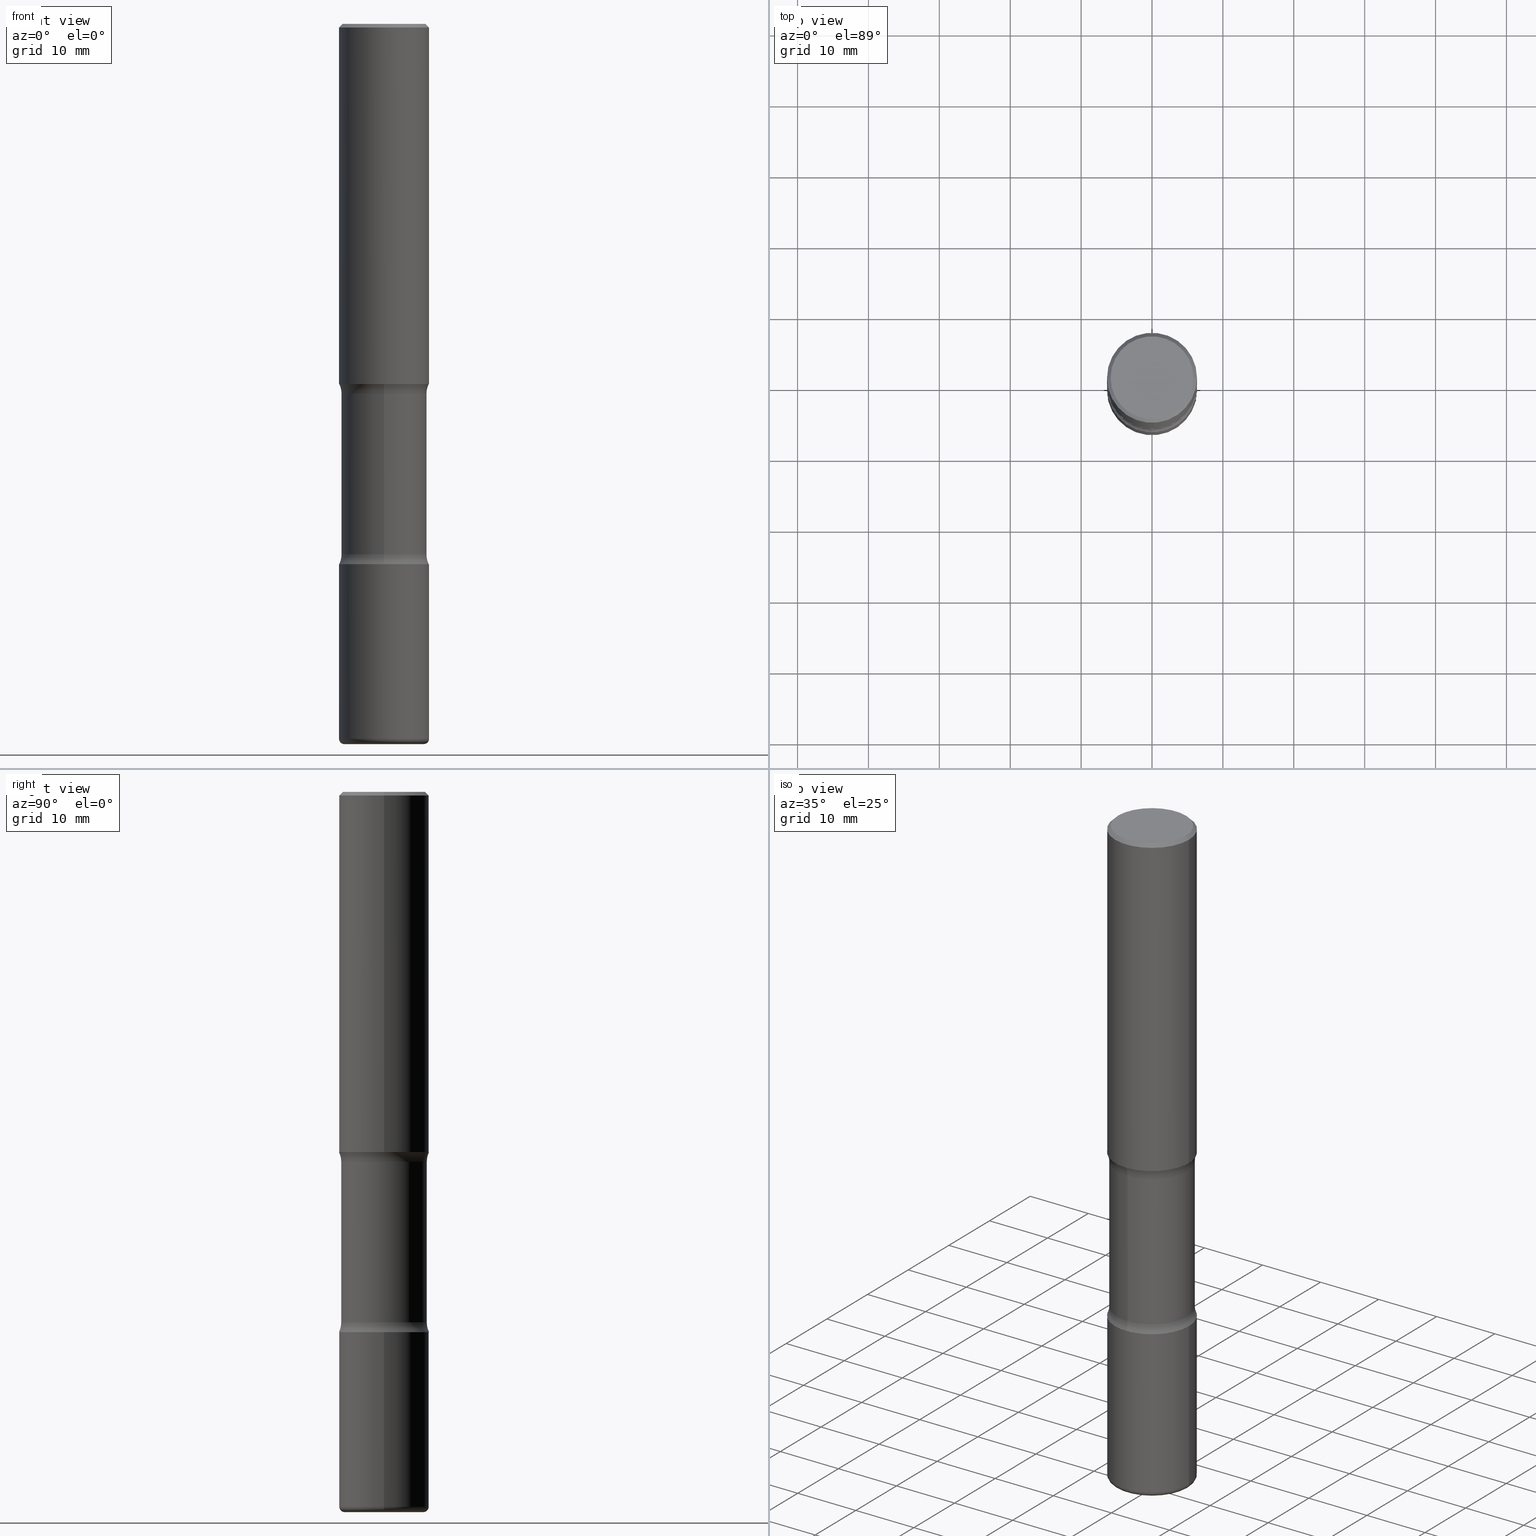
[diagram: canonical four-view strip — front | top / right | iso, engineering-drawing reading convention]
A machine part, canonical four-view strip (front | top / right | iso — engineering-drawing reading convention). The complete STEP part file that produces these views, byte-faithful:
ISO-10303-21;
HEADER;
FILE_DESCRIPTION (( 'STEP AP203' ),
    '1' );
FILE_NAME ('37880.STEP',
    '2024-03-02T01:01:30',
    ( '' ),
    ( '' ),
    'SwSTEP 2.0',
    'SolidWorks 2023',
    '' );
FILE_SCHEMA (( 'CONFIG_CONTROL_DESIGN' ));
ENDSEC;

DATA;
#1 = PERSON_AND_ORGANIZATION ( #337, #177 ) ;
#2 = CIRCLE ( 'NONE', #307, 0.2200000000000003897 ) ;
#3 = AXIS2_PLACEMENT_3D ( 'NONE', #332, #420, #509 ) ;
#4 = COORDINATED_UNIVERSAL_TIME_OFFSET ( 5, 0, .BEHIND. ) ;
#5 = ORIENTED_EDGE ( 'NONE', *, *, #423, .F. ) ;
#6 = ADVANCED_BREP_SHAPE_REPRESENTATION ( '37880', ( #57, #51, #59, #299 ), #287 ) ;
#7 = ORIENTED_EDGE ( 'NONE', *, *, #284, .T. ) ;
#8 = ORIENTED_EDGE ( 'NONE', *, *, #466, .T. ) ;
#9 = AXIS2_PLACEMENT_3D ( 'NONE', #35, #360, #548 ) ;
#10 = EDGE_CURVE ( 'NONE', #165, #477, #252, .T. ) ;
#11 = ORIENTED_EDGE ( 'NONE', *, *, #138, .F. ) ;
#12 = DIRECTION ( 'NONE',  ( 2.530378452311521502E-29, -3.369885892833230986E-15, -1.000000000000000000 ) ) ;
#13 = CARTESIAN_POINT ( 'NONE',  ( 0.2500000000000000555, -1.745740669421567269E-15, 1.219044193948984228E-29 ) ) ;
#14 = ORIENTED_EDGE ( 'NONE', *, *, #245, .T. ) ;
#15 = DIRECTION ( 'NONE',  ( -2.445468806185136597E-29, 3.491481338843145583E-15, 1.000000000000000000 ) ) ;
#16 = CARTESIAN_POINT ( 'NONE',  ( 4.806027966243888288E-29, -7.104558123696206156E-15, -2.000000000000000000 ) ) ;
#17 = DIRECTION ( 'NONE',  ( 1.000000000000000000, -6.982962677686267499E-15, 0.000000000000000000 ) ) ;
#18 = EDGE_CURVE ( 'NONE', #256, #439, #427, .T. ) ;
#19 = CC_DESIGN_DATE_AND_TIME_ASSIGNMENT ( #105, #328, ( #220 ) ) ;
#20 = CIRCLE ( 'NONE', #471, 0.02999999999999967970 ) ;
#21 = CIRCLE ( 'NONE', #85, 0.1250000000000000278 ) ;
#22 = LOCAL_TIME ( 20, 1, 30.00000000000000000, #168 ) ;
#23 = DIRECTION ( 'NONE',  ( -2.445468806185136597E-29, 3.491481338843145583E-15, 1.000000000000000000 ) ) ;
#24 = DIRECTION ( 'NONE',  ( 2.530378452311521502E-29, -3.369885892833230986E-15, -1.000000000000000000 ) ) ;
#25 = CYLINDRICAL_SURFACE ( 'NONE', #242, 0.2375000000000000999 ) ;
#26 = EDGE_CURVE ( 'NONE', #126, #95, #169, .T. ) ;
#27 = DIRECTION ( 'NONE',  ( 1.000000000000000000, -6.982962677686267499E-15, 0.000000000000000000 ) ) ;
#28 = CARTESIAN_POINT ( 'NONE',  ( -0.2499999999999999167, 1.675911042644703182E-15, -0.02000000000000006981 ) ) ;
#29 =( CONVERSION_BASED_UNIT ( 'INCH', #163 ) LENGTH_UNIT ( ) NAMED_UNIT ( #343 ) );
#30 = LINE ( 'NONE', #417, #554 ) ;
#31 = DIRECTION ( 'NONE',  ( 2.530378452311521502E-29, -3.369885892833230986E-15, -1.000000000000000000 ) ) ;
#32 = DIRECTION ( 'NONE',  ( -1.000000000000000000, 6.982962677686265922E-15, -4.876176775795935793E-29 ) ) ;
#33 = CARTESIAN_POINT ( 'NONE',  ( 9.866784870866931853E-29, -1.384432990936266734E-14, -4.000000000000000000 ) ) ;
#34 = AXIS2_PLACEMENT_3D ( 'NONE', #16, #534, #148 ) ;
#35 = CARTESIAN_POINT ( 'NONE',  ( 7.336406418555409790E-29, -1.047444401652943635E-14, -3.000000000000000444 ) ) ;
#36 = ORIENTED_EDGE ( 'NONE', *, *, #267, .F. ) ;
#37 = PERSON_AND_ORGANIZATION ( #337, #177 ) ;
#38 = CARTESIAN_POINT ( 'NONE',  ( 9.708511160554993993E-29, -1.386118091520729054E-14, -3.970000000000000639 ) ) ;
#39 = EDGE_CURVE ( 'NONE', #525, #397, #297, .T. ) ;
#40 = VERTEX_POINT ( 'NONE', #486 ) ;
#41 = ORIENTED_EDGE ( 'NONE', *, *, #10, .F. ) ;
#42 = AXIS2_PLACEMENT_3D ( 'NONE', #65, #31, #487 ) ;
#43 = EDGE_LOOP ( 'NONE', ( #401, #207 ) ) ;
#44 = AXIS2_PLACEMENT_3D ( 'NONE', #268, #282, #32 ) ;
#45 = ORIENTED_EDGE ( 'NONE', *, *, #107, .F. ) ;
#46 = ADVANCED_FACE ( 'NONE', ( #415 ), #419, .F. ) ;
#47 = ORIENTED_EDGE ( 'NONE', *, *, #271, .F. ) ;
#48 = ADVANCED_FACE ( 'NONE', ( #488 ), #316, .F. ) ;
#49 = ORIENTED_EDGE ( 'NONE', *, *, #462, .T. ) ;
#50 = CIRCLE ( 'NONE', #63, 0.1250000000000000278 ) ;
#51 = MANIFOLD_SOLID_BREP ( 'Body-Move/Copy2[2]', #553 ) ;
#52 = EDGE_CURVE ( 'NONE', #515, #126, #398, .T. ) ;
#53 = ORIENTED_EDGE ( 'NONE', *, *, #267, .T. ) ;
#54 = FACE_OUTER_BOUND ( 'NONE', #302, .T. ) ;
#55 = DIRECTION ( 'NONE',  ( -1.000000000000000000, 6.982962677686265922E-15, -4.876176775795935793E-29 ) ) ;
#56 = DIRECTION ( 'NONE',  ( 6.982962677686265922E-15, 1.000000000000000000, -3.369885892833230986E-15 ) ) ;
#57 = MANIFOLD_SOLID_BREP ( 'Body-Move/Copy2[1]', #511 ) ;
#58 = CARTESIAN_POINT ( 'NONE',  ( 1.658453635950560525E-15, 0.2374999999999897748, -2.945513763205741764 ) ) ;
#59 = MANIFOLD_SOLID_BREP ( 'Body-Move/Copy2[4]', #253 ) ;
#60 = DIRECTION ( 'NONE',  ( -2.438088387897960049E-29, 3.491481338843145188E-15, 1.000000000000000000 ) ) ;
#61 = CARTESIAN_POINT ( 'NONE',  ( -1.629368274470640415E-15, -0.2375000000000139222, -3.999999999999999556 ) ) ;
#62 = AXIS2_PLACEMENT_3D ( 'NONE', #140, #160, #308 ) ;
#63 = AXIS2_PLACEMENT_3D ( 'NONE', #197, #240, #492 ) ;
#64 = AXIS2_PLACEMENT_3D ( 'NONE', #33, #322, #117 ) ;
#65 = CARTESIAN_POINT ( 'NONE',  ( 7.198535619023675570E-29, -1.029083161580289368E-14, -2.945513763205741320 ) ) ;
#66 = CARTESIAN_POINT ( 'NONE',  ( 7.336406418555409790E-29, -1.047444401652943635E-14, -3.000000000000000444 ) ) ;
#67 = DIRECTION ( 'NONE',  ( 1.000000000000000000, -6.982962677686269077E-15, 4.883557194083113462E-29 ) ) ;
#68 = EDGE_CURVE ( 'NONE', #515, #199, #291, .T. ) ;
#69 = FACE_OUTER_BOUND ( 'NONE', #475, .T. ) ;
#70 = ORIENTED_EDGE ( 'NONE', *, *, #258, .F. ) ;
#71 = PERSON_AND_ORGANIZATION_ROLE ( 'design_supplier' ) ;
#72 = DIRECTION ( 'NONE',  ( 6.982962677686265133E-15, 1.000000000000000000, -3.450755360418014766E-15 ) ) ;
#73 = CC_DESIGN_PERSON_AND_ORGANIZATION_ASSIGNMENT ( #1, #127, ( #339 ) ) ;
#74 = DIRECTION ( 'NONE',  ( 6.982962677686265133E-15, 1.000000000000000000, -3.278217592397110735E-15 ) ) ;
#75 = CIRCLE ( 'NONE', #119, 0.02999999999999967970 ) ;
#76 = ORIENTED_EDGE ( 'NONE', *, *, #10, .T. ) ;
#77 = FACE_OUTER_BOUND ( 'NONE', #333, .T. ) ;
#78 = CARTESIAN_POINT ( 'NONE',  ( 0.000000000000000000, 0.000000000000000000, 0.000000000000000000 ) ) ;
#79 = ORIENTED_EDGE ( 'NONE', *, *, #341, .T. ) ;
#80 = VERTEX_POINT ( 'NONE', #279 ) ;
#81 = ADVANCED_FACE ( 'NONE', ( #102 ), #195, .T. ) ;
#82 = CALENDAR_DATE ( 2024, 1, 3 ) ;
#83 = APPLICATION_CONTEXT ( 'configuration controlled 3d designs of mechanical parts and assemblies' ) ;
#84 = AXIS2_PLACEMENT_3D ( 'NONE', #66, #369, #363 ) ;
#85 = AXIS2_PLACEMENT_3D ( 'NONE', #546, #541, #152 ) ;
#86 = VERTEX_POINT ( 'NONE', #28 ) ;
#87 = EDGE_CURVE ( 'NONE', #40, #165, #496, .T. ) ;
#88 = AXIS2_PLACEMENT_3D ( 'NONE', #153, #321, #123 ) ;
#89 = ORIENTED_EDGE ( 'NONE', *, *, #310, .T. ) ;
#90 = CIRCLE ( 'NONE', #130, 0.2499999999999999167 ) ;
#91 = LOCAL_TIME ( 20, 1, 30.00000000000000000, #315 ) ;
#92 = ORIENTED_EDGE ( 'NONE', *, *, #97, .F. ) ;
#93 = CC_DESIGN_PERSON_AND_ORGANIZATION_ASSIGNMENT ( #414, #229, ( #429 ) ) ;
#94 = ORIENTED_EDGE ( 'NONE', *, *, #87, .T. ) ;
#95 = VERTEX_POINT ( 'NONE', #373 ) ;
#96 = DIRECTION ( 'NONE',  ( 2.530378452311521502E-29, -3.369885892833230986E-15, -1.000000000000000000 ) ) ;
#97 = EDGE_CURVE ( 'NONE', #171, #347, #50, .T. ) ;
#98 = CARTESIAN_POINT ( 'NONE',  ( 4.890937612370273194E-29, -6.982962677686291165E-15, -2.000000000000000000 ) ) ;
#99 = DIRECTION ( 'NONE',  ( 1.000000000000000000, -6.982962677686267499E-15, 0.000000000000000000 ) ) ;
#100 = EDGE_CURVE ( 'NONE', #477, #385, #483, .T. ) ;
#101 = DIRECTION ( 'NONE',  ( -2.445468806185136597E-29, 3.491481338843145583E-15, 1.000000000000000000 ) ) ;
#102 = FACE_OUTER_BOUND ( 'NONE', #285, .T. ) ;
#103 = FACE_OUTER_BOUND ( 'NONE', #243, .T. ) ;
#104 = DIRECTION ( 'NONE',  ( 0.7071067811865467956, -7.319954787623254468E-15, -0.7071067811865482389 ) ) ;
#105 = DATE_AND_TIME ( #368, #157 ) ;
#106 = FACE_OUTER_BOUND ( 'NONE', #473, .T. ) ;
#107 = EDGE_CURVE ( 'NONE', #342, #86, #218, .T. ) ;
#108 = CARTESIAN_POINT ( 'NONE',  ( 0.2500000000000002776, -1.222018468595100619E-14, -3.000000000000000444 ) ) ;
#109 = AXIS2_PLACEMENT_3D ( 'NONE', #146, #60, #230 ) ;
#110 = CC_DESIGN_APPROVAL ( #209, ( #339 ) ) ;
#111 = CARTESIAN_POINT ( 'NONE',  ( 4.943898765775623630E-29, -7.288170524422749615E-15, -2.054486236794258680 ) ) ;
#112 = EDGE_CURVE ( 'NONE', #199, #515, #298, .T. ) ;
#113 = DIRECTION ( 'NONE',  ( 2.445468806185136597E-29, -3.491481338843145583E-15, -1.000000000000000000 ) ) ;
#114 = DIRECTION ( 'NONE',  ( 6.982962677686265133E-15, 1.000000000000000000, -2.300503573612010239E-15 ) ) ;
#115 = CARTESIAN_POINT ( 'NONE',  ( -2.486930524192130572E-15, -0.3625000000000073164, -2.054486236794257792 ) ) ;
#116 = ORIENTED_EDGE ( 'NONE', *, *, #125, .F. ) ;
#117 = DIRECTION ( 'NONE',  ( 6.982962677686265133E-15, 1.000000000000000000, -2.300503573612010239E-15 ) ) ;
#118 = ADVANCED_FACE ( 'NONE', ( #106 ), #239, .F. ) ;
#119 = AXIS2_PLACEMENT_3D ( 'NONE', #234, #445, #406 ) ;
#120 = VERTEX_POINT ( 'NONE', #539 ) ;
#121 = APPROVAL ( #523, 'UNSPECIFIED' ) ;
#122 = TOROIDAL_SURFACE ( 'NONE', #3, 0.3625000000000000999, 0.1250000000000000278 ) ;
#123 = DIRECTION ( 'NONE',  ( 1.000000000000000000, -6.982962677686270655E-15, 0.000000000000000000 ) ) ;
#124 =( NAMED_UNIT ( * ) SI_UNIT ( $, .STERADIAN. ) SOLID_ANGLE_UNIT ( ) );
#125 = EDGE_CURVE ( 'NONE', #199, #347, #149, .T. ) ;
#126 = VERTEX_POINT ( 'NONE', #543 ) ;
#127 = PERSON_AND_ORGANIZATION_ROLE ( 'creator' ) ;
#128 = CARTESIAN_POINT ( 'NONE',  ( 7.336406418555409790E-29, -1.047444401652943635E-14, -3.000000000000000444 ) ) ;
#129 = VECTOR ( 'NONE', #181, 39.37007874015748143 ) ;
#130 = AXIS2_PLACEMENT_3D ( 'NONE', #324, #137, #265 ) ;
#131 = APPROVAL_STATUS ( 'not_yet_approved' ) ;
#132 = EDGE_LOOP ( 'NONE', ( #517, #528, #179, #14 ) ) ;
#133 = EDGE_LOOP ( 'NONE', ( #381, #529, #467, #49 ) ) ;
#134 = EDGE_LOOP ( 'NONE', ( #216, #257, #294, #478 ) ) ;
#135 = DIRECTION ( 'NONE',  ( 6.982962677686265922E-15, 1.000000000000000000, -3.369885892833230592E-15 ) ) ;
#136 = ORIENTED_EDGE ( 'NONE', *, *, #396, .F. ) ;
#137 = DIRECTION ( 'NONE',  ( -2.445468806185136597E-29, 3.491481338843145583E-15, 1.000000000000000000 ) ) ;
#138 = EDGE_CURVE ( 'NONE', #385, #477, #323, .T. ) ;
#139 = CARTESIAN_POINT ( 'NONE',  ( 0.000000000000000000, 0.000000000000000000, 0.000000000000000000 ) ) ;
#140 = CARTESIAN_POINT ( 'NONE',  ( 0.000000000000000000, 0.000000000000000000, 0.000000000000000000 ) ) ;
#141 = DIRECTION ( 'NONE',  ( -6.982962677686265922E-15, -1.000000000000000000, 3.369885892833230592E-15 ) ) ;
#142 = CARTESIAN_POINT ( 'NONE',  ( 4.890937612370289799E-31, -6.982962677686315028E-17, -0.02000000000000006981 ) ) ;
#143 = AXIS2_PLACEMENT_3D ( 'NONE', #370, #356, #459 ) ;
#144 = CARTESIAN_POINT ( 'NONE',  ( 0.000000000000000000, 0.000000000000000000, 0.000000000000000000 ) ) ;
#145 = APPROVAL_ROLE ( '' ) ;
#146 = CARTESIAN_POINT ( 'NONE',  ( 4.890937612370273194E-29, -6.982962677686291165E-15, -2.000000000000000000 ) ) ;
#147 = CARTESIAN_POINT ( 'NONE',  ( 7.336406418555409790E-29, -1.047444401652943635E-14, -3.000000000000000444 ) ) ;
#148 = DIRECTION ( 'NONE',  ( 6.982962677686265133E-15, 1.000000000000000000, -3.278217592397110735E-15 ) ) ;
#149 = LINE ( 'NONE', #272, #513 ) ;
#150 = CARTESIAN_POINT ( 'NONE',  ( -0.2499999999999999167, 1.675911042644703182E-15, -0.02000000000000006981 ) ) ;
#151 = DIRECTION ( 'NONE',  ( 2.530378452311521502E-29, -3.369885892833230986E-15, -1.000000000000000000 ) ) ;
#152 = DIRECTION ( 'NONE',  ( 6.860497997771532351E-15, 1.000000000000000000, 0.000000000000000000 ) ) ;
#153 = CARTESIAN_POINT ( 'NONE',  ( 7.336406418555409790E-29, -1.047444401652943635E-14, -3.000000000000000444 ) ) ;
#154 = CYLINDRICAL_SURFACE ( 'NONE', #64, 0.2375000000000000999 ) ;
#155 = CARTESIAN_POINT ( 'NONE',  ( -0.2200000000000003897, -1.224377770625369951E-14, -4.000000000000000000 ) ) ;
#156 = VECTOR ( 'NONE', #158, 39.37007874015748143 ) ;
#157 = LOCAL_TIME ( 20, 1, 30.00000000000000000, #549 ) ;
#158 = DIRECTION ( 'NONE',  ( -2.445468806185136877E-29, 3.491481338843145188E-15, 1.000000000000000000 ) ) ;
#159 = ORIENTED_EDGE ( 'NONE', *, *, #204, .T. ) ;
#160 = DIRECTION ( 'NONE',  ( -2.445468806185136597E-29, 3.491481338843145583E-15, 1.000000000000000000 ) ) ;
#161 = DIRECTION ( 'NONE',  ( -2.445468806185136597E-29, 3.491481338843145583E-15, 1.000000000000000000 ) ) ;
#162 = EDGE_LOOP ( 'NONE', ( #394, #8 ) ) ;
#163 = LENGTH_MEASURE_WITH_UNIT ( LENGTH_MEASURE( 0.02539999999999999897 ), #273 );
#164 = TOROIDAL_SURFACE ( 'NONE', #260, 0.3625000000000000999, 0.1250000000000000000 ) ;
#165 = VERTEX_POINT ( 'NONE', #289 ) ;
#166 = ORIENTED_EDGE ( 'NONE', *, *, #466, .F. ) ;
#167 = PERSON_AND_ORGANIZATION_ROLE ( 'design_owner' ) ;
#168 = COORDINATED_UNIVERSAL_TIME_OFFSET ( 5, 0, .BEHIND. ) ;
#169 = CIRCLE ( 'NONE', #482, 0.2500000000000003886 ) ;
#170 = APPROVAL_PERSON_ORGANIZATION ( #431, #209, #393 ) ;
#171 = VERTEX_POINT ( 'NONE', #351 ) ;
#172 = EDGE_CURVE ( 'NONE', #165, #40, #254, .T. ) ;
#173 = ORIENTED_EDGE ( 'NONE', *, *, #300, .T. ) ;
#174 = EDGE_CURVE ( 'NONE', #120, #80, #21, .T. ) ;
#175 = AXIS2_PLACEMENT_3D ( 'NONE', #436, #178, #135 ) ;
#176 = ORIENTED_EDGE ( 'NONE', *, *, #100, .T. ) ;
#177 = ORGANIZATION ( 'UNSPECIFIED', 'UNSPECIFIED', '' ) ;
#178 = DIRECTION ( 'NONE',  ( 2.530378452311521502E-29, -3.369885892833230592E-15, -1.000000000000000000 ) ) ;
#179 = ORIENTED_EDGE ( 'NONE', *, *, #433, .T. ) ;
#180 = FACE_OUTER_BOUND ( 'NONE', #278, .T. ) ;
#181 = DIRECTION ( 'NONE',  ( -2.445468806185136877E-29, 3.491481338843145188E-15, 1.000000000000000000 ) ) ;
#182 = ORIENTED_EDGE ( 'NONE', *, *, #396, .T. ) ;
#183 = CARTESIAN_POINT ( 'NONE',  ( 4.976491023364875751E-29, -7.241496556518841686E-15, -2.054486236794258680 ) ) ;
#184 = DIRECTION ( 'NONE',  ( -2.445468806185136597E-29, 3.491481338843145583E-15, 1.000000000000000000 ) ) ;
#185 = CARTESIAN_POINT ( 'NONE',  ( 4.943898765775623630E-29, -7.288170524422749615E-15, -2.054486236794258680 ) ) ;
#186 = CIRCLE ( 'NONE', #335, 0.2200000000000003897 ) ;
#187 = CARTESIAN_POINT ( 'NONE',  ( 0.2200000000000003897, -1.550217714446356385E-14, -4.000000000000000000 ) ) ;
#188 = COORDINATED_UNIVERSAL_TIME_OFFSET ( 5, 0, .BEHIND. ) ;
#189 = CARTESIAN_POINT ( 'NONE',  ( 4.806027966243888288E-29, -7.104558123696206156E-15, -2.000000000000000000 ) ) ;
#190 = CC_DESIGN_DATE_AND_TIME_ASSIGNMENT ( #293, #390, ( #339 ) ) ;
#191 = LINE ( 'NONE', #13, #129 ) ;
#192 = CARTESIAN_POINT ( 'NONE',  ( 4.890937612370273194E-29, -6.982962677686291165E-15, -2.000000000000000000 ) ) ;
#193 = DIRECTION ( 'NONE',  ( 6.982962677686265922E-15, 1.000000000000000000, -4.370956789862816416E-15 ) ) ;
#194 = DIRECTION ( 'NONE',  ( -2.445468806185136597E-29, 3.491481338843145583E-15, 1.000000000000000000 ) ) ;
#195 = PLANE ( 'NONE',  #44 ) ;
#196 = CONICAL_SURFACE ( 'NONE', #476, 0.2499999999999999167, 0.7853981633974472798 ) ;
#197 = CARTESIAN_POINT ( 'NONE',  ( 2.531323970661343863E-15, 0.3624999999999897748, -2.945513763205742652 ) ) ;
#198 = DIRECTION ( 'NONE',  ( -1.000000000000000000, 6.982962677686267499E-15, 0.000000000000000000 ) ) ;
#199 = VERTEX_POINT ( 'NONE', #538 ) ;
#200 = PERSON_AND_ORGANIZATION ( #337, #177 ) ;
#201 = DIRECTION ( 'NONE',  ( 2.445468806185136597E-29, -3.491481338843145583E-15, -1.000000000000000000 ) ) ;
#202 = ORIENTED_EDGE ( 'NONE', *, *, #87, .F. ) ;
#203 = APPLICATION_PROTOCOL_DEFINITION ( 'international standard', 'config_control_design', 1994, #83 ) ;
#204 = EDGE_CURVE ( 'NONE', #397, #342, #319, .T. ) ;
#205 = CIRCLE ( 'NONE', #428, 0.2375000000000000722 ) ;
#206 = CARTESIAN_POINT ( 'NONE',  ( 0.000000000000000000, 0.000000000000000000, 0.000000000000000000 ) ) ;
#207 = ORIENTED_EDGE ( 'NONE', *, *, #371, .T. ) ;
#208 = ADVANCED_FACE ( 'NONE', ( #367 ), #437, .F. ) ;
#209 = APPROVAL ( #131, 'UNSPECIFIED' ) ;
#210 = APPLICATION_PROTOCOL_DEFINITION ( 'international standard', 'config_control_design', 1994, #432 ) ;
#211 = FACE_OUTER_BOUND ( 'NONE', #303, .T. ) ;
#212 = FACE_OUTER_BOUND ( 'NONE', #468, .T. ) ;
#213 = APPROVAL_DATE_TIME ( #516, #209 ) ;
#214 = AXIS2_PLACEMENT_3D ( 'NONE', #139, #23, #306 ) ;
#215 = ORIENTED_EDGE ( 'NONE', *, *, #300, .F. ) ;
#216 = ORIENTED_EDGE ( 'NONE', *, *, #469, .F. ) ;
#217 = ORIENTED_EDGE ( 'NONE', *, *, #172, .F. ) ;
#218 = CIRCLE ( 'NONE', #409, 0.2499999999999999167 ) ;
#219 = ORIENTED_EDGE ( 'NONE', *, *, #430, .F. ) ;
#220 = SECURITY_CLASSIFICATION ( '', '', #454 ) ;
#221 = UNCERTAINTY_MEASURE_WITH_UNIT (LENGTH_MEASURE( 1.000000000000000082E-05 ), #29, 'distance_accuracy_value', 'NONE');
#222 = CARTESIAN_POINT ( 'NONE',  ( 0.2500000000000003331, -1.745740669421569044E-15, 1.219044193948985630E-29 ) ) ;
#223 = ORIENTED_EDGE ( 'NONE', *, *, #430, .T. ) ;
#224 = CARTESIAN_POINT ( 'NONE',  ( 7.336406418555409790E-29, -1.047444401652943635E-14, -3.000000000000000444 ) ) ;
#225 = CYLINDRICAL_SURFACE ( 'NONE', #292, 0.2500000000000003331 ) ;
#226 = DIRECTION ( 'NONE',  ( 2.438088387897960049E-29, -3.491481338843145188E-15, -1.000000000000000000 ) ) ;
#227 = CARTESIAN_POINT ( 'NONE',  ( 9.708511160554993993E-29, -1.386118091520729054E-14, -3.970000000000000639 ) ) ;
#228 = DIRECTION ( 'NONE',  ( 6.982962677686265922E-15, 1.000000000000000000, -3.369885892833230986E-15 ) ) ;
#229 = PERSON_AND_ORGANIZATION_ROLE ( 'creator' ) ;
#230 = DIRECTION ( 'NONE',  ( 1.000000000000000000, -6.982962677686265922E-15, 4.876176775795935793E-29 ) ) ;
#231 = CIRCLE ( 'NONE', #34, 0.2500000000000003886 ) ;
#232 = CARTESIAN_POINT ( 'NONE',  ( -0.2500000000000002776, -1.039145562646811219E-14, -3.000000000000000444 ) ) ;
#233 = CC_DESIGN_PERSON_AND_ORGANIZATION_ASSIGNMENT ( #37, #378, ( #220 ) ) ;
#234 = CARTESIAN_POINT ( 'NONE',  ( -0.2200000000000003897, -1.229798689653506716E-14, -3.970000000000000639 ) ) ;
#235 = CALENDAR_DATE ( 2024, 1, 3 ) ;
#236 = DIRECTION ( 'NONE',  ( -2.445468806185136877E-29, 3.491481338843145188E-15, 1.000000000000000000 ) ) ;
#237 = DIRECTION ( 'NONE',  ( 6.982962677686265922E-15, 1.000000000000000000, -3.369885892833230986E-15 ) ) ;
#238 = CC_DESIGN_PERSON_AND_ORGANIZATION_ASSIGNMENT ( #555, #167, ( #557 ) ) ;
#239 = PLANE ( 'NONE',  #109 ) ;
#240 = DIRECTION ( 'NONE',  ( -1.000000000000000000, 6.982962677686265922E-15, -4.883557194083112340E-29 ) ) ;
#241 = CIRCLE ( 'NONE', #421, 0.2500000000000002776 ) ;
#242 = AXIS2_PLACEMENT_3D ( 'NONE', #480, #96, #489 ) ;
#243 = EDGE_LOOP ( 'NONE', ( #166, #510, #7, #92 ) ) ;
#244 = VERTEX_POINT ( 'NONE', #187 ) ;
#245 = EDGE_CURVE ( 'NONE', #95, #126, #231, .T. ) ;
#246 = ORIENTED_EDGE ( 'NONE', *, *, #26, .F. ) ;
#247 = APPROVAL_ROLE ( '' ) ;
#248 = AXIS2_PLACEMENT_3D ( 'NONE', #111, #407, #535 ) ;
#249 = CIRCLE ( 'NONE', #375, 0.2500000000000002776 ) ;
#250 = ADVANCED_FACE ( 'NONE', ( #485 ), #277, .T. ) ;
#251 = DIRECTION ( 'NONE',  ( 0.000000000000000000, 0.000000000000000000, 1.000000000000000000 ) ) ;
#252 = LINE ( 'NONE', #312, #533 ) ;
#253 = CLOSED_SHELL ( 'NONE', ( #537, #507, #208, #389, #379, #518, #521, #481 ) ) ;
#254 = CIRCLE ( 'NONE', #526, 0.2500000000000003886 ) ;
#255 = TOROIDAL_SURFACE ( 'NONE', #344, 0.2200000000000003897, 0.02999999999999969705 ) ;
#256 = VERTEX_POINT ( 'NONE', #314 ) ;
#257 = ORIENTED_EDGE ( 'NONE', *, *, #68, .T. ) ;
#258 = EDGE_CURVE ( 'NONE', #395, #244, #186, .T. ) ;
#259 = ORIENTED_EDGE ( 'NONE', *, *, #462, .F. ) ;
#260 = AXIS2_PLACEMENT_3D ( 'NONE', #183, #151, #56 ) ;
#261 = ORIENTED_EDGE ( 'NONE', *, *, #26, .T. ) ;
#262 = CARTESIAN_POINT ( 'NONE',  ( 7.203162026108633562E-29, -1.028420633753849345E-14, -2.945513763205741320 ) ) ;
#263 = DIRECTION ( 'NONE',  ( 1.000000000000000000, -6.982962677686265922E-15, 0.000000000000000000 ) ) ;
#264 = CARTESIAN_POINT ( 'NONE',  ( 4.890937612370289799E-31, -6.982962677686315028E-17, -0.02000000000000006981 ) ) ;
#265 = DIRECTION ( 'NONE',  ( 1.000000000000000000, -6.982962677686267499E-15, 0.000000000000000000 ) ) ;
#266 = CYLINDRICAL_SURFACE ( 'NONE', #350, 0.2500000000000000555 ) ;
#267 = EDGE_CURVE ( 'NONE', #40, #385, #410, .T. ) ;
#268 = CARTESIAN_POINT ( 'NONE',  ( 9.781875224740546387E-29, -1.396592535537258233E-14, -4.000000000000000000 ) ) ;
#269 = DIRECTION ( 'NONE',  ( -2.445468806185136877E-29, 3.491481338843145188E-15, 1.000000000000000000 ) ) ;
#270 = DIRECTION ( 'NONE',  ( 1.000000000000000000, -6.982962677686267499E-15, 0.000000000000000000 ) ) ;
#271 = EDGE_CURVE ( 'NONE', #244, #40, #20, .T. ) ;
#272 = CARTESIAN_POINT ( 'NONE',  ( 1.658453635950587543E-15, 0.2374999999999862776, -4.000000000000000888 ) ) ;
#273 =( LENGTH_UNIT ( ) NAMED_UNIT ( * ) SI_UNIT ( $, .METRE. ) );
#274 = VECTOR ( 'NONE', #104, 39.37007874015748143 ) ;
#275 = CARTESIAN_POINT ( 'NONE',  ( -0.2500000000000001665, -1.750039312831323809E-15, -2.000000000000000000 ) ) ;
#276 = AXIS2_PLACEMENT_3D ( 'NONE', #262, #494, #237 ) ;
#277 = CYLINDRICAL_SURFACE ( 'NONE', #359, 0.2500000000000000555 ) ;
#278 = EDGE_LOOP ( 'NONE', ( #223, #89, #202, #47 ) ) ;
#279 = CARTESIAN_POINT ( 'NONE',  ( -1.672246386956739071E-15, -0.2375000000000103417, -2.945513763205740876 ) ) ;
#280 = FACE_OUTER_BOUND ( 'NONE', #132, .T. ) ;
#281 = DIRECTION ( 'NONE',  ( -2.445468806185136597E-29, 3.491481338843145583E-15, 1.000000000000000000 ) ) ;
#282 = DIRECTION ( 'NONE',  ( 2.438088387897960049E-29, -3.491481338843145188E-15, -1.000000000000000000 ) ) ;
#283 = CARTESIAN_POINT ( 'NONE',  ( -0.2299999999999998990, 1.640996229256271928E-15, -1.135408596578605420E-29 ) ) ;
#284 = EDGE_CURVE ( 'NONE', #80, #347, #545, .T. ) ;
#285 = EDGE_LOOP ( 'NONE', ( #219, #70 ) ) ;
#286 = AXIS2_PLACEMENT_3D ( 'NONE', #227, #408, #67 ) ;
#287 =( GEOMETRIC_REPRESENTATION_CONTEXT ( 3 ) GLOBAL_UNCERTAINTY_ASSIGNED_CONTEXT ( ( #221 ) ) GLOBAL_UNIT_ASSIGNED_CONTEXT ( ( #29, #512, #124 ) ) REPRESENTATION_CONTEXT ( 'NONE', 'WORKASPACE' ) );
#288 = ORIENTED_EDGE ( 'NONE', *, *, #245, .F. ) ;
#289 = CARTESIAN_POINT ( 'NONE',  ( -0.2500000000000002220, -1.208482407580703850E-14, -3.970000000000000639 ) ) ;
#290 = ORIENTED_EDGE ( 'NONE', *, *, #349, .F. ) ;
#291 = CIRCLE ( 'NONE', #248, 0.2375000000000001277 ) ;
#292 = AXIS2_PLACEMENT_3D ( 'NONE', #206, #348, #441 ) ;
#293 = DATE_AND_TIME ( #82, #22 ) ;
#294 = ORIENTED_EDGE ( 'NONE', *, *, #125, .T. ) ;
#295 = DIRECTION ( 'NONE',  ( -2.445468806185136597E-29, 3.491481338843145583E-15, 1.000000000000000000 ) ) ;
#296 = ORIENTED_EDGE ( 'NONE', *, *, #271, .T. ) ;
#297 = CIRCLE ( 'NONE', #62, 0.2299999999999998990 ) ;
#298 = CIRCLE ( 'NONE', #383, 0.2375000000000001277 ) ;
#299 = AXIS2_PLACEMENT_3D ( 'NONE', #382, #251, #340 ) ;
#300 = EDGE_CURVE ( 'NONE', #439, #256, #374, .T. ) ;
#301 = EDGE_LOOP ( 'NONE', ( #552, #558, #261, #531 ) ) ;
#302 = EDGE_LOOP ( 'NONE', ( #94, #76, #11, #36 ) ) ;
#303 = EDGE_LOOP ( 'NONE', ( #355, #5, #425, #79 ) ) ;
#304 = ADVANCED_FACE ( 'NONE', ( #69 ), #266, .T. ) ;
#305 = DIRECTION ( 'NONE',  ( 6.982962677686265922E-15, 1.000000000000000000, -4.370956789862816416E-15 ) ) ;
#306 = DIRECTION ( 'NONE',  ( 1.000000000000000000, -6.982962677686266711E-15, 4.876176775795935793E-29 ) ) ;
#307 = AXIS2_PLACEMENT_3D ( 'NONE', #532, #15, #405 ) ;
#308 = DIRECTION ( 'NONE',  ( 1.000000000000000000, -6.982962677686267499E-15, 4.876176775795936353E-29 ) ) ;
#309 = CARTESIAN_POINT ( 'NONE',  ( 0.2299999999999998990, -1.681434332853598617E-15, 1.149527484987432660E-29 ) ) ;
#310 = EDGE_CURVE ( 'NONE', #395, #165, #75, .T. ) ;
#311 = DIRECTION ( 'NONE',  ( -6.982962677686266711E-15, -1.000000000000000000, 3.491481338843145583E-15 ) ) ;
#312 = CARTESIAN_POINT ( 'NONE',  ( -0.2500000000000003331, 1.776356839400252831E-15, -1.229733772563727987E-29 ) ) ;
#313 = DIRECTION ( 'NONE',  ( 2.530378452311521502E-29, -3.369885892833230986E-15, -1.000000000000000000 ) ) ;
#314 = CARTESIAN_POINT ( 'NONE',  ( 0.2500000000000001665, -8.728703347107858632E-15, -2.000000000000000000 ) ) ;
#315 = COORDINATED_UNIVERSAL_TIME_OFFSET ( 5, 0, .BEHIND. ) ;
#316 = PLANE ( 'NONE',  #84 ) ;
#317 = FACE_OUTER_BOUND ( 'NONE', #377, .T. ) ;
#318 = DIRECTION ( 'NONE',  ( 1.000000000000000000, -6.982962677686267499E-15, 4.876176775795936353E-29 ) ) ;
#319 = LINE ( 'NONE', #358, #274 ) ;
#320 = AXIS2_PLACEMENT_3D ( 'NONE', #500, #226, #55 ) ;
#321 = DIRECTION ( 'NONE',  ( -2.445468806185136597E-29, 3.491481338843145583E-15, 1.000000000000000000 ) ) ;
#322 = DIRECTION ( 'NONE',  ( 2.530378452311521502E-29, -3.369885892833230986E-15, -1.000000000000000000 ) ) ;
#323 = CIRCLE ( 'NONE', #88, 0.2500000000000002776 ) ;
#324 = CARTESIAN_POINT ( 'NONE',  ( 4.890937612370289799E-31, -6.982962677686315028E-17, -0.02000000000000006981 ) ) ;
#325 = AXIS2_PLACEMENT_3D ( 'NONE', #506, #201, #198 ) ;
#326 = CARTESIAN_POINT ( 'NONE',  ( 0.2200000000000003897, -1.539743270429827048E-14, -3.970000000000000639 ) ) ;
#327 = ORIENTED_EDGE ( 'NONE', *, *, #100, .F. ) ;
#328 = DATE_TIME_ROLE ( 'classification_date' ) ;
#329 = DIRECTION ( 'NONE',  ( 6.860497997771529985E-15, 1.000000000000000000, 0.000000000000000000 ) ) ;
#330 = ORIENTED_EDGE ( 'NONE', *, *, #258, .T. ) ;
#331 = PERSON_AND_ORGANIZATION ( #337, #177 ) ;
#332 = CARTESIAN_POINT ( 'NONE',  ( 7.203162026108633562E-29, -1.028420633753849345E-14, -2.945513763205741320 ) ) ;
#333 = EDGE_LOOP ( 'NONE', ( #463, #330, #296, #217 ) ) ;
#334 = AXIS2_PLACEMENT_3D ( 'NONE', #411, #505, #99 ) ;
#335 = AXIS2_PLACEMENT_3D ( 'NONE', #418, #281, #270 ) ;
#336 = AXIS2_PLACEMENT_3D ( 'NONE', #128, #434, #141 ) ;
#337 = PERSON ( 'UNSPECIFIED', 'UNSPECIFIED', 'UNSPECIFIED', ('UNSPECIFIED'), ('UNSPECIFIED'), ('UNSPECIFIED') ) ;
#338 = ORIENTED_EDGE ( 'NONE', *, *, #341, .F. ) ;
#339 = PRODUCT_DEFINITION ( 'UNKNOWN', '', #429, #502 ) ;
#340 = DIRECTION ( 'NONE',  ( 1.000000000000000000, 0.000000000000000000, 0.000000000000000000 ) ) ;
#341 = EDGE_CURVE ( 'NONE', #347, #80, #205, .T. ) ;
#342 = VERTEX_POINT ( 'NONE', #413 ) ;
#343 = DIMENSIONAL_EXPONENTS ( 1.000000000000000000, 0.000000000000000000, 0.000000000000000000, 0.000000000000000000, 0.000000000000000000, 0.000000000000000000, 0.000000000000000000 ) ;
#344 = AXIS2_PLACEMENT_3D ( 'NONE', #38, #161, #501 ) ;
#345 = PERSON_AND_ORGANIZATION ( #337, #177 ) ;
#346 = ORIENTED_EDGE ( 'NONE', *, *, #172, .T. ) ;
#347 = VERTEX_POINT ( 'NONE', #58 ) ;
#348 = DIRECTION ( 'NONE',  ( -2.445468806185136597E-29, 3.491481338843145583E-15, 1.000000000000000000 ) ) ;
#349 = EDGE_CURVE ( 'NONE', #256, #342, #191, .T. ) ;
#350 = AXIS2_PLACEMENT_3D ( 'NONE', #447, #503, #460 ) ;
#351 = CARTESIAN_POINT ( 'NONE',  ( 1.745740669421641422E-15, 0.2499999999999897582, -3.000000000000000888 ) ) ;
#352 = ORIENTED_EDGE ( 'NONE', *, *, #551, .F. ) ;
#353 = ORIENTED_EDGE ( 'NONE', *, *, #138, .T. ) ;
#354 = FACE_OUTER_BOUND ( 'NONE', #550, .T. ) ;
#355 = ORIENTED_EDGE ( 'NONE', *, *, #174, .F. ) ;
#356 = DIRECTION ( 'NONE',  ( -1.000000000000000000, 6.982962677686265922E-15, -4.883557194083112340E-29 ) ) ;
#357 = ADVANCED_FACE ( 'NONE', ( #354 ), #530, .T. ) ;
#358 = CARTESIAN_POINT ( 'NONE',  ( 0.2499999999999999167, -1.784954126219745400E-15, -0.02000000000000006981 ) ) ;
#359 = AXIS2_PLACEMENT_3D ( 'NONE', #144, #194, #457 ) ;
#360 = DIRECTION ( 'NONE',  ( -2.445468806185136597E-29, 3.491481338843145583E-15, 1.000000000000000000 ) ) ;
#361 = CONICAL_SURFACE ( 'NONE', #325, 0.2499999999999999167, 0.7853981633974472798 ) ;
#362 = DATE_AND_TIME ( #235, #472 ) ;
#363 = DIRECTION ( 'NONE',  ( -1.000000000000000000, 6.982962677686265922E-15, -4.876176775795935793E-29 ) ) ;
#364 = LINE ( 'NONE', #150, #527 ) ;
#365 = LINE ( 'NONE', #61, #384 ) ;
#366 = ADVANCED_FACE ( 'NONE', ( #54 ), #225, .T. ) ;
#367 = FACE_OUTER_BOUND ( 'NONE', #301, .T. ) ;
#368 = CALENDAR_DATE ( 2024, 1, 3 ) ;
#369 = DIRECTION ( 'NONE',  ( 2.438088387897960049E-29, -3.491481338843145188E-15, -1.000000000000000000 ) ) ;
#370 = CARTESIAN_POINT ( 'NONE',  ( 2.531323970661321775E-15, 0.3624999999999928280, -2.054486236794260012 ) ) ;
#371 = EDGE_CURVE ( 'NONE', #397, #525, #442, .T. ) ;
#372 = CARTESIAN_POINT ( 'NONE',  ( 7.198535619023675570E-29, -1.029083161580289368E-14, -2.945513763205741320 ) ) ;
#373 = CARTESIAN_POINT ( 'NONE',  ( 1.745740669421617165E-15, 0.2499999999999933109, -2.000000000000000888 ) ) ;
#374 = CIRCLE ( 'NONE', #519, 0.2500000000000001665 ) ;
#375 = AXIS2_PLACEMENT_3D ( 'NONE', #147, #313, #305 ) ;
#376 = DIRECTION ( 'NONE',  ( -2.445468806185136597E-29, 3.491481338843145583E-15, 1.000000000000000000 ) ) ;
#377 = EDGE_LOOP ( 'NONE', ( #404, #159, #479, #352 ) ) ;
#378 = PERSON_AND_ORGANIZATION_ROLE ( 'classification_officer' ) ;
#379 = ADVANCED_FACE ( 'NONE', ( #212 ), #391, .F. ) ;
#380 = APPROVAL ( #542, 'UNSPECIFIED' ) ;
#381 = ORIENTED_EDGE ( 'NONE', *, *, #204, .F. ) ;
#382 = CARTESIAN_POINT ( 'NONE',  ( 0.000000000000000000, 0.000000000000000000, 0.000000000000000000 ) ) ;
#383 = AXIS2_PLACEMENT_3D ( 'NONE', #185, #458, #72 ) ;
#384 = VECTOR ( 'NONE', #451, 39.37007874015748143 ) ;
#385 = VERTEX_POINT ( 'NONE', #108 ) ;
#386 = MECHANICAL_CONTEXT ( 'NONE', #83, 'mechanical' ) ;
#387 = ADVANCED_FACE ( 'NONE', ( #402 ), #196, .T. ) ;
#388 = CALENDAR_DATE ( 2024, 1, 3 ) ;
#389 = ADVANCED_FACE ( 'NONE', ( #280 ), #164, .F. ) ;
#390 = DATE_TIME_ROLE ( 'creation_date' ) ;
#391 = PLANE ( 'NONE',  #175 ) ;
#392 = CIRCLE ( 'NONE', #143, 0.1250000000000000000 ) ;
#393 = APPROVAL_ROLE ( '' ) ;
#394 = ORIENTED_EDGE ( 'NONE', *, *, #423, .T. ) ;
#395 = VERTEX_POINT ( 'NONE', #155 ) ;
#396 = EDGE_CURVE ( 'NONE', #439, #86, #30, .T. ) ;
#397 = VERTEX_POINT ( 'NONE', #309 ) ;
#398 = CIRCLE ( 'NONE', #544, 0.1250000000000000000 ) ;
#399 = AXIS2_PLACEMENT_3D ( 'NONE', #497, #403, #228 ) ;
#400 = APPROVAL_PERSON_ORGANIZATION ( #345, #121, #247 ) ;
#401 = ORIENTED_EDGE ( 'NONE', *, *, #39, .T. ) ;
#402 = FACE_OUTER_BOUND ( 'NONE', #133, .T. ) ;
#403 = DIRECTION ( 'NONE',  ( 2.530378452311521502E-29, -3.369885892833230986E-15, -1.000000000000000000 ) ) ;
#404 = ORIENTED_EDGE ( 'NONE', *, *, #371, .F. ) ;
#405 = DIRECTION ( 'NONE',  ( 1.000000000000000000, -6.982962677686267499E-15, 0.000000000000000000 ) ) ;
#406 = DIRECTION ( 'NONE',  ( -1.000000000000000000, 7.105427357601001859E-15, 0.000000000000000000 ) ) ;
#407 = DIRECTION ( 'NONE',  ( 2.530378452311521502E-29, -3.369885892833230986E-15, -1.000000000000000000 ) ) ;
#408 = DIRECTION ( 'NONE',  ( -2.445468806185136597E-29, 3.491481338843145583E-15, 1.000000000000000000 ) ) ;
#409 = AXIS2_PLACEMENT_3D ( 'NONE', #264, #446, #17 ) ;
#410 = LINE ( 'NONE', #222, #156 ) ;
#411 = CARTESIAN_POINT ( 'NONE',  ( 9.708511160554993993E-29, -1.386118091520729054E-14, -3.970000000000000639 ) ) ;
#412 = FACE_OUTER_BOUND ( 'NONE', #134, .T. ) ;
#413 = CARTESIAN_POINT ( 'NONE',  ( 0.2499999999999999167, -1.784954126219745400E-15, -0.02000000000000006981 ) ) ;
#414 = PERSON_AND_ORGANIZATION ( #337, #177 ) ;
#415 = FACE_OUTER_BOUND ( 'NONE', #43, .T. ) ;
#416 = DIRECTION ( 'NONE',  ( -0.7071067811865467956, 2.468850131082249172E-15, -0.7071067811865482389 ) ) ;
#417 = CARTESIAN_POINT ( 'NONE',  ( -0.2500000000000000555, 1.776356839400250859E-15, -1.229733772563726866E-29 ) ) ;
#418 = CARTESIAN_POINT ( 'NONE',  ( 9.781875224740546387E-29, -1.396592535537258233E-14, -4.000000000000000000 ) ) ;
#419 = PLANE ( 'NONE',  #320 ) ;
#420 = DIRECTION ( 'NONE',  ( 2.530378452311521502E-29, -3.369885892833230986E-15, -1.000000000000000000 ) ) ;
#421 = AXIS2_PLACEMENT_3D ( 'NONE', #224, #12, #193 ) ;
#422 = ORIENTED_EDGE ( 'NONE', *, *, #469, .T. ) ;
#423 = EDGE_CURVE ( 'NONE', #171, #120, #241, .T. ) ;
#424 = FACE_OUTER_BOUND ( 'NONE', #508, .T. ) ;
#425 = ORIENTED_EDGE ( 'NONE', *, *, #97, .T. ) ;
#426 = ORIENTED_EDGE ( 'NONE', *, *, #349, .T. ) ;
#427 = CIRCLE ( 'NONE', #495, 0.2500000000000001665 ) ;
#428 = AXIS2_PLACEMENT_3D ( 'NONE', #372, #490, #114 ) ;
#429 = PRODUCT_DEFINITION_FORMATION_WITH_SPECIFIED_SOURCE ( 'ANY', '', #557, .NOT_KNOWN. ) ;
#430 = EDGE_CURVE ( 'NONE', #244, #395, #2, .T. ) ;
#431 = PERSON_AND_ORGANIZATION ( #337, #177 ) ;
#432 = APPLICATION_CONTEXT ( 'configuration controlled 3d designs of mechanical parts and assemblies' ) ;
#433 = EDGE_CURVE ( 'NONE', #199, #95, #392, .T. ) ;
#434 = DIRECTION ( 'NONE',  ( -2.530378452311521502E-29, 3.369885892833230592E-15, 1.000000000000000000 ) ) ;
#435 = EDGE_LOOP ( 'NONE', ( #353, #176 ) ) ;
#436 = CARTESIAN_POINT ( 'NONE',  ( 4.890937612370273194E-29, -6.982962677686291165E-15, -2.000000000000000000 ) ) ;
#437 = TOROIDAL_SURFACE ( 'NONE', #399, 0.3625000000000000999, 0.1250000000000000000 ) ;
#438 = EDGE_LOOP ( 'NONE', ( #136, #173, #426, #259 ) ) ;
#439 = VERTEX_POINT ( 'NONE', #275 ) ;
#440 = ORIENTED_EDGE ( 'NONE', *, *, #18, .F. ) ;
#441 = DIRECTION ( 'NONE',  ( 1.000000000000000000, -6.982962677686266711E-15, 4.876176775795935793E-29 ) ) ;
#442 = CIRCLE ( 'NONE', #452, 0.2299999999999998990 ) ;
#443 = ORIENTED_EDGE ( 'NONE', *, *, #18, .T. ) ;
#444 = CARTESIAN_POINT ( 'NONE',  ( -1.672246386956763723E-15, -0.2375000000000074274, -2.054486236794258236 ) ) ;
#445 = DIRECTION ( 'NONE',  ( 7.105427357601001859E-15, 1.000000000000000000, -3.491481338843145583E-15 ) ) ;
#446 = DIRECTION ( 'NONE',  ( -2.445468806185136597E-29, 3.491481338843145583E-15, 1.000000000000000000 ) ) ;
#447 = CARTESIAN_POINT ( 'NONE',  ( 0.000000000000000000, 0.000000000000000000, 0.000000000000000000 ) ) ;
#448 = DATE_AND_TIME ( #464, #91 ) ;
#449 = DIRECTION ( 'NONE',  ( 1.000000000000000000, -6.860497997771530774E-15, 4.842287994361612002E-29 ) ) ;
#450 = ADVANCED_FACE ( 'NONE', ( #180 ), #465, .T. ) ;
#451 = DIRECTION ( 'NONE',  ( 2.530378452311521502E-29, -3.369885892833230592E-15, -1.000000000000000000 ) ) ;
#452 = AXIS2_PLACEMENT_3D ( 'NONE', #78, #295, #318 ) ;
#453 = DIRECTION ( 'NONE',  ( 1.000000000000000000, -6.982962677686277755E-15, 0.000000000000000000 ) ) ;
#454 = SECURITY_CLASSIFICATION_LEVEL ( 'unclassified' ) ;
#455 = LOCAL_TIME ( 20, 1, 30.00000000000000000, #4 ) ;
#456 = DIRECTION ( 'NONE',  ( 2.530378452311521502E-29, -3.369885892833230592E-15, -1.000000000000000000 ) ) ;
#457 = DIRECTION ( 'NONE',  ( 1.000000000000000000, -6.982962677686267499E-15, 4.876176775795935793E-29 ) ) ;
#458 = DIRECTION ( 'NONE',  ( 2.530378452311521502E-29, -3.369885892833230986E-15, -1.000000000000000000 ) ) ;
#459 = DIRECTION ( 'NONE',  ( -6.982962677686266711E-15, -1.000000000000000000, 0.000000000000000000 ) ) ;
#460 = DIRECTION ( 'NONE',  ( 1.000000000000000000, -6.982962677686267499E-15, 4.876176775795935793E-29 ) ) ;
#461 = DIRECTION ( 'NONE',  ( 1.000000000000000000, -6.982962677686265922E-15, 0.000000000000000000 ) ) ;
#462 = EDGE_CURVE ( 'NONE', #86, #342, #90, .T. ) ;
#463 = ORIENTED_EDGE ( 'NONE', *, *, #310, .F. ) ;
#464 = CALENDAR_DATE ( 2024, 1, 3 ) ;
#465 = TOROIDAL_SURFACE ( 'NONE', #286, 0.2200000000000003897, 0.02999999999999969705 ) ;
#466 = EDGE_CURVE ( 'NONE', #120, #171, #249, .T. ) ;
#467 = ORIENTED_EDGE ( 'NONE', *, *, #551, .T. ) ;
#468 = EDGE_LOOP ( 'NONE', ( #288, #246 ) ) ;
#469 = EDGE_CURVE ( 'NONE', #515, #80, #365, .T. ) ;
#470 = PRODUCT_DEFINITION_SHAPE ( 'NONE', 'NONE',  #339 ) ;
#471 = AXIS2_PLACEMENT_3D ( 'NONE', #326, #311, #453 ) ;
#472 = LOCAL_TIME ( 20, 1, 30.00000000000000000, #188 ) ;
#473 = EDGE_LOOP ( 'NONE', ( #440, #215 ) ) ;
#474 = CARTESIAN_POINT ( 'NONE',  ( 9.708511160554993993E-29, -1.386118091520729054E-14, -3.970000000000000639 ) ) ;
#475 = EDGE_LOOP ( 'NONE', ( #443, #182, #45, #290 ) ) ;
#476 = AXIS2_PLACEMENT_3D ( 'NONE', #142, #113, #536 ) ;
#477 = VERTEX_POINT ( 'NONE', #232 ) ;
#478 = ORIENTED_EDGE ( 'NONE', *, *, #284, .F. ) ;
#479 = ORIENTED_EDGE ( 'NONE', *, *, #107, .T. ) ;
#480 = CARTESIAN_POINT ( 'NONE',  ( 9.866784870866931853E-29, -1.384432990936266734E-14, -4.000000000000000000 ) ) ;
#481 = ADVANCED_FACE ( 'NONE', ( #412 ), #25, .T. ) ;
#482 = AXIS2_PLACEMENT_3D ( 'NONE', #189, #24, #74 ) ;
#483 = CIRCLE ( 'NONE', #9, 0.2500000000000002776 ) ;
#484 = CC_DESIGN_APPROVAL ( #380, ( #220 ) ) ;
#485 = FACE_OUTER_BOUND ( 'NONE', #438, .T. ) ;
#486 = CARTESIAN_POINT ( 'NONE',  ( 0.2500000000000002220, -1.560692158462885722E-14, -3.970000000000000639 ) ) ;
#487 = DIRECTION ( 'NONE',  ( 6.982962677686265133E-15, 1.000000000000000000, -2.300503573612010239E-15 ) ) ;
#488 = FACE_OUTER_BOUND ( 'NONE', #435, .T. ) ;
#489 = DIRECTION ( 'NONE',  ( 6.982962677686265133E-15, 1.000000000000000000, -2.300503573612010239E-15 ) ) ;
#490 = DIRECTION ( 'NONE',  ( 2.530378452311521502E-29, -3.369885892833230986E-15, -1.000000000000000000 ) ) ;
#491 = APPROVAL_DATE_TIME ( #448, #121 ) ;
#492 = DIRECTION ( 'NONE',  ( -6.982962677686265133E-15, -1.000000000000000000, 0.000000000000000000 ) ) ;
#493 = PRODUCT_RELATED_PRODUCT_CATEGORY ( 'detail', '', ( #557 ) ) ;
#494 = DIRECTION ( 'NONE',  ( 2.530378452311521502E-29, -3.369885892833230986E-15, -1.000000000000000000 ) ) ;
#495 = AXIS2_PLACEMENT_3D ( 'NONE', #192, #376, #461 ) ;
#496 = CIRCLE ( 'NONE', #334, 0.2500000000000003886 ) ;
#497 = CARTESIAN_POINT ( 'NONE',  ( 4.976491023364875751E-29, -7.241496556518841686E-15, -2.054486236794258680 ) ) ;
#498 = APPROVAL_DATE_TIME ( #362, #380 ) ;
#499 = CC_DESIGN_APPROVAL ( #121, ( #429 ) ) ;
#500 = CARTESIAN_POINT ( 'NONE',  ( 1.606081415867840476E-15, 0.2299999999999998990, -8.030407079339231961E-16 ) ) ;
#501 = DIRECTION ( 'NONE',  ( 1.000000000000000000, -6.982962677686269077E-15, 4.883557194083113462E-29 ) ) ;
#502 = DESIGN_CONTEXT ( 'detailed design', #432, 'design' ) ;
#503 = DIRECTION ( 'NONE',  ( -2.445468806185136597E-29, 3.491481338843145583E-15, 1.000000000000000000 ) ) ;
#504 = SHAPE_DEFINITION_REPRESENTATION ( #470, #6 ) ;
#505 = DIRECTION ( 'NONE',  ( -2.445468806185136597E-29, 3.491481338843145583E-15, 1.000000000000000000 ) ) ;
#506 = CARTESIAN_POINT ( 'NONE',  ( 4.890937612370289799E-31, -6.982962677686315028E-17, -0.02000000000000006981 ) ) ;
#507 = ADVANCED_FACE ( 'NONE', ( #103 ), #520, .F. ) ;
#508 = EDGE_LOOP ( 'NONE', ( #524, #422, #338, #116 ) ) ;
#509 = DIRECTION ( 'NONE',  ( 6.982962677686265922E-15, 1.000000000000000000, -3.369885892833230986E-15 ) ) ;
#510 = ORIENTED_EDGE ( 'NONE', *, *, #174, .T. ) ;
#511 = CLOSED_SHELL ( 'NONE', ( #366, #450, #81, #556, #357, #48 ) ) ;
#512 =( NAMED_UNIT ( * ) PLANE_ANGLE_UNIT ( ) SI_UNIT ( $, .RADIAN. ) );
#513 = VECTOR ( 'NONE', #456, 39.37007874015748143 ) ;
#514 = APPROVAL_PERSON_ORGANIZATION ( #200, #380, #145 ) ;
#515 = VERTEX_POINT ( 'NONE', #444 ) ;
#516 = DATE_AND_TIME ( #388, #455 ) ;
#517 = ORIENTED_EDGE ( 'NONE', *, *, #52, .F. ) ;
#518 = ADVANCED_FACE ( 'NONE', ( #540 ), #560, .F. ) ;
#519 = AXIS2_PLACEMENT_3D ( 'NONE', #98, #101, #263 ) ;
#520 = TOROIDAL_SURFACE ( 'NONE', #276, 0.3625000000000000999, 0.1250000000000000278 ) ;
#521 = ADVANCED_FACE ( 'NONE', ( #211 ), #122, .F. ) ;
#522 = CC_DESIGN_PERSON_AND_ORGANIZATION_ASSIGNMENT ( #331, #71, ( #429 ) ) ;
#523 = APPROVAL_STATUS ( 'not_yet_approved' ) ;
#524 = ORIENTED_EDGE ( 'NONE', *, *, #112, .T. ) ;
#525 = VERTEX_POINT ( 'NONE', #283 ) ;
#526 = AXIS2_PLACEMENT_3D ( 'NONE', #474, #184, #27 ) ;
#527 = VECTOR ( 'NONE', #416, 39.37007874015748143 ) ;
#528 = ORIENTED_EDGE ( 'NONE', *, *, #112, .F. ) ;
#529 = ORIENTED_EDGE ( 'NONE', *, *, #39, .F. ) ;
#530 = CYLINDRICAL_SURFACE ( 'NONE', #214, 0.2500000000000003331 ) ;
#531 = ORIENTED_EDGE ( 'NONE', *, *, #433, .F. ) ;
#532 = CARTESIAN_POINT ( 'NONE',  ( 9.781875224740546387E-29, -1.396592535537258233E-14, -4.000000000000000000 ) ) ;
#533 = VECTOR ( 'NONE', #236, 39.37007874015748143 ) ;
#534 = DIRECTION ( 'NONE',  ( 2.530378452311521502E-29, -3.369885892833230986E-15, -1.000000000000000000 ) ) ;
#535 = DIRECTION ( 'NONE',  ( 6.982962677686265133E-15, 1.000000000000000000, -3.450755360418014766E-15 ) ) ;
#536 = DIRECTION ( 'NONE',  ( -1.000000000000000000, 6.982962677686267499E-15, 0.000000000000000000 ) ) ;
#537 = ADVANCED_FACE ( 'NONE', ( #424 ), #154, .T. ) ;
#538 = CARTESIAN_POINT ( 'NONE',  ( 1.658453635950538436E-15, 0.2374999999999928557, -2.054486236794259568 ) ) ;
#539 = CARTESIAN_POINT ( 'NONE',  ( -1.715124499442811104E-15, -0.2500000000000107692, -2.999999999999999556 ) ) ;
#540 = FACE_OUTER_BOUND ( 'NONE', #162, .T. ) ;
#541 = DIRECTION ( 'NONE',  ( 1.000000000000000000, -6.860497997771530774E-15, 4.842287994361612002E-29 ) ) ;
#542 = APPROVAL_STATUS ( 'not_yet_approved' ) ;
#543 = CARTESIAN_POINT ( 'NONE',  ( -1.715124499442836348E-15, -0.2500000000000074385, -1.999999999999999112 ) ) ;
#544 = AXIS2_PLACEMENT_3D ( 'NONE', #115, #449, #329 ) ;
#545 = CIRCLE ( 'NONE', #42, 0.2375000000000000722 ) ;
#546 = CARTESIAN_POINT ( 'NONE',  ( -2.486930524192108484E-15, -0.3625000000000104250, -2.945513763205740432 ) ) ;
#547 = CC_DESIGN_SECURITY_CLASSIFICATION ( #220, ( #429 ) ) ;
#548 = DIRECTION ( 'NONE',  ( 1.000000000000000000, -6.982962677686270655E-15, 0.000000000000000000 ) ) ;
#549 = COORDINATED_UNIVERSAL_TIME_OFFSET ( 5, 0, .BEHIND. ) ;
#550 = EDGE_LOOP ( 'NONE', ( #41, #346, #53, #327 ) ) ;
#551 = EDGE_CURVE ( 'NONE', #525, #86, #364, .T. ) ;
#552 = ORIENTED_EDGE ( 'NONE', *, *, #68, .F. ) ;
#553 = CLOSED_SHELL ( 'NONE', ( #304, #559, #387, #46, #118, #250 ) ) ;
#554 = VECTOR ( 'NONE', #269, 39.37007874015748143 ) ;
#555 = PERSON_AND_ORGANIZATION ( #337, #177 ) ;
#556 = ADVANCED_FACE ( 'NONE', ( #77 ), #255, .T. ) ;
#557 = PRODUCT ( '37880', '37880', '', ( #386 ) ) ;
#558 = ORIENTED_EDGE ( 'NONE', *, *, #52, .T. ) ;
#559 = ADVANCED_FACE ( 'NONE', ( #317 ), #361, .T. ) ;
#560 = PLANE ( 'NONE',  #336 ) ;
ENDSEC;
END-ISO-10303-21;
